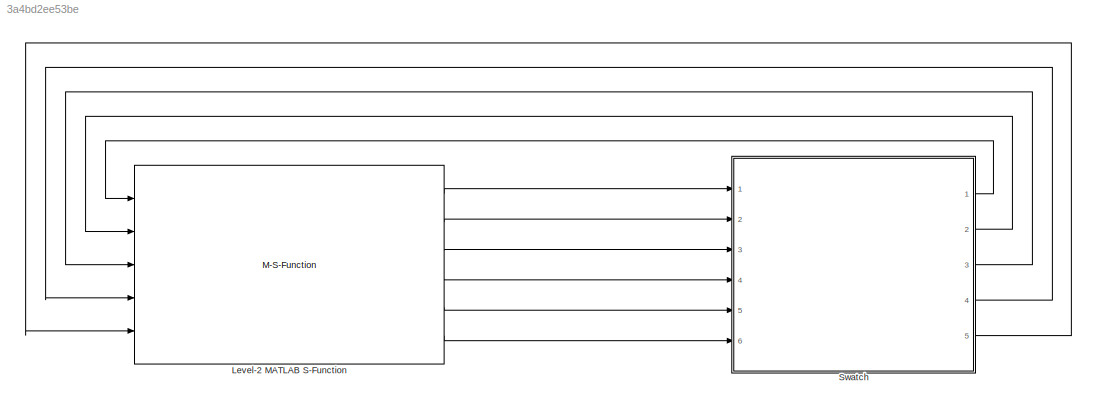
MODEL slx_3a4bd2ee53be
KIND model
CONFIG AbsTol = auto
CONFIG EnableMultiTasking = on
CONFIG FixedStep = 0.1
CONFIG MaxStep = auto
CONFIG MinStep = auto
CONFIG RelTol = 1e-3
CONFIG SampleTimeConstraint = Unconstrained
CONFIG Solver = ode3
CONFIG SolverName = ode3
CONFIG StartTime = 0.0
CONFIG StopTime = inf
BLOCK [M-S-Function] Level-2 MATLAB S-Function
  FunctionName = WI
  Ports = [5, 6]
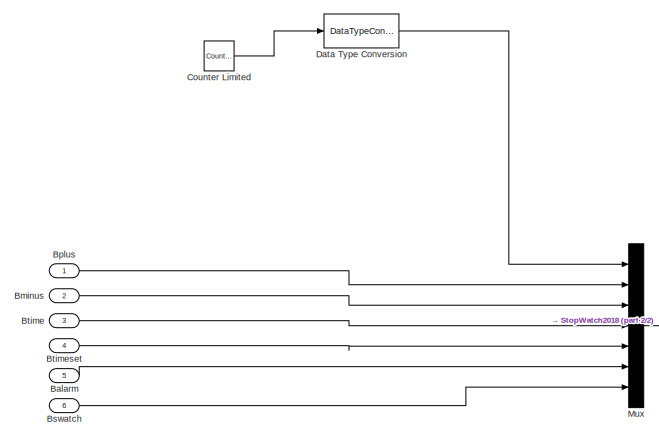
[diagram: Swatch   - part 1/2, left side, full height]
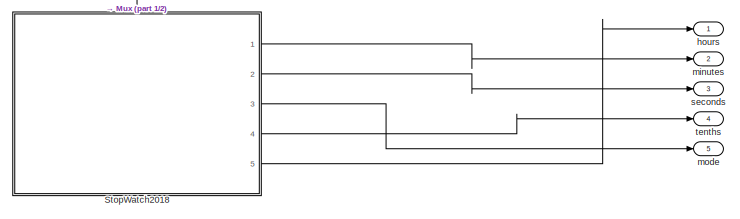
[diagram: Swatch   - part 2/2, bottom right region]
BLOCK [SubSystem] Swatch  
  Ports = [6, 5]
  RequestExecContextInheritance = off
BLOCK [Inport] Swatch  /Balarm
  IconDisplay = Port number
  Port = 5
BLOCK [Inport] Swatch  /Bminus
  IconDisplay = Port number
  Port = 2
BLOCK [Inport] Swatch  /Bplus
  IconDisplay = Port number
BLOCK [Inport] Swatch  /Bswatch
  IconDisplay = Port number
  Port = 6
BLOCK [Inport] Swatch  /Btime
  IconDisplay = Port number
  Port = 3
BLOCK [Inport] Swatch  /Btimeset 
  IconDisplay = Port number
  Port = 4
BLOCK [Reference] Swatch  /Counter Limited  REF=simulink/Sources/Counter
Limited
  Ports = [0, 1]
  SourceBlock = simulink/Sources/Counter\nLimited
  SourceProductBaseCode = SL
  SourceProductName = Simulink
  SourceType = Counter Limited
BLOCK [DataTypeConversion] Swatch  /Data Type Conversion
  OutDataTypeStr = boolean
  RndMeth = Floor
  SaturateOnIntegerOverflow = off
BLOCK [Mux] Swatch  /Mux
  DisplayOption = bar
  Inputs = 7
  Ports = [7, 1]
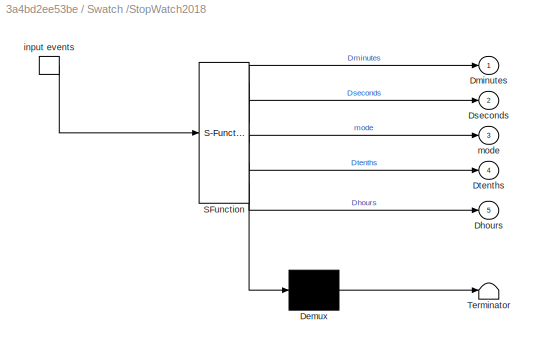
BLOCK [SubSystem] Swatch  /StopWatch2018 
  BlockKeywords = __PRM__SERIALIZED__DATA__:Stateflow Chart,Stateflow Diagram
  ErrorFcn = Stateflow.Translate.translate
  PermitHierarchicalResolution = ExplicitOnly
  Ports = [0, 5, 0, 1]
  RequestExecContextInheritance = off
  SFBlockType = Chart
  TreatAsAtomicUnit = on
BLOCK [Demux] Swatch  /StopWatch2018 / Demux 
  Outputs = 1
  Ports = [1, 1]
BLOCK [S-Function] Swatch  /StopWatch2018 / SFunction 
  EnableBusSupport = on
  FunctionName = sf_sfun
  PortCounts = [1 6]
  Ports = [1, 6]
  SFcnIsStateOwnerBlock = off
  SFunctionDeploymentMode = off
  Tag = Stateflow S-Function Stop_Generated 3
BLOCK [Terminator] Swatch  /StopWatch2018 / Terminator 
BLOCK [Outport] Swatch  /StopWatch2018 /Dhours
  IconDisplay = Port number
  Port = 5
BLOCK [Outport] Swatch  /StopWatch2018 /Dminutes
  IconDisplay = Port number
BLOCK [Outport] Swatch  /StopWatch2018 /Dseconds
  IconDisplay = Port number
  Port = 2
BLOCK [Outport] Swatch  /StopWatch2018 /Dtenths
  IconDisplay = Port number
  Port = 4
BLOCK [TriggerPort] Swatch  /StopWatch2018 /input events
  Ports = [0, 1]
  ShowOutputPort = on
  StatesWhenEnabling = held
  VariantControl = (inherit)
BLOCK [Outport] Swatch  /StopWatch2018 /mode
  IconDisplay = Port number
  Port = 3
BLOCK [Outport] Swatch  /hours
  IconDisplay = Port number
BLOCK [Outport] Swatch  /minutes
  IconDisplay = Port number
  Port = 2
BLOCK [Outport] Swatch  /mode
  IconDisplay = Port number
  Port = 5
BLOCK [Outport] Swatch  /seconds
  IconDisplay = Port number
  Port = 3
BLOCK [Outport] Swatch  /tenths
  IconDisplay = Port number
  Port = 4
LINE Level-2 MATLAB S-Function:1 -> Swatch  :1
LINE Level-2 MATLAB S-Function:2 -> Swatch  :2
LINE Level-2 MATLAB S-Function:3 -> Swatch  :3
LINE Level-2 MATLAB S-Function:4 -> Swatch  :4
LINE Level-2 MATLAB S-Function:5 -> Swatch  :5
LINE Level-2 MATLAB S-Function:6 -> Swatch  :6
LINE Swatch  /Balarm:1 -> Swatch  /Mux:6
LINE Swatch  /Bminus:1 -> Swatch  /Mux:3
LINE Swatch  /Bplus:1 -> Swatch  /Mux:2
LINE Swatch  /Bswatch:1 -> Swatch  /Mux:7
LINE Swatch  /Btime:1 -> Swatch  /Mux:4
LINE Swatch  /Btimeset :1 -> Swatch  /Mux:5
LINE Swatch  /Counter Limited:1 -> Swatch  /Data Type Conversion:1
LINE Swatch  /Data Type Conversion:1 -> Swatch  /Mux:1
LINE Swatch  /Mux:1 -> Swatch  /StopWatch2018 :trigger
LINE Swatch  /StopWatch2018 :1 -> Swatch  /minutes:1
LINE Swatch  /StopWatch2018 :2 -> Swatch  /seconds:1
LINE Swatch  /StopWatch2018 :3 -> Swatch  /mode:1
LINE Swatch  /StopWatch2018 :4 -> Swatch  /tenths:1
LINE Swatch  /StopWatch2018 :5 -> Swatch  /hours:1
LINE Swatch  :1 -> Level-2 MATLAB S-Function:1
LINE Swatch  :2 -> Level-2 MATLAB S-Function:2
LINE Swatch  :3 -> Level-2 MATLAB S-Function:3
LINE Swatch  :4 -> Level-2 MATLAB S-Function:4
LINE Swatch  :5 -> Level-2 MATLAB S-Function:5
CHART Swatch  /StopWatch2018
 states=20 transitions=74
  STATE_LABEL 'AlarmManagement'
  STATE_LABEL 'Checking'
  STATE_LABEL 'Alarm_ON'
  STATE_LABEL '[Ahours == hours && Aminutes == minutes]'
  STATE_LABEL '[Ahours ~= hours || Aminutes ~= minutes]'
  STATE_LABEL 'Checking'
  STATE_LABEL 'Alarm_ON'
  STATE_LABEL 'TimeCount\n'
  STATE_LABEL 'Count\n'
  STATE_LABEL '{Dtenths = uint8(0);\ntenths = uint8(0);}'
  STATE_LABEL '{hours = hours +1}'
  STATE_LABEL '{minutes = minutes +1;}'
  STATE_LABEL '{seconds = seconds + 1;}'
  STATE_LABEL 'Tick'
  STATE_LABEL '[tenths == 9]{tenths = uint8(0);}'
  STATE_LABEL '[seconds == 59]{seconds = uint8(0);}'
  STATE_LABEL '[minutes == 59]{minutes = uint8(0);}'
  STATE_LABEL '[hours == 24]{hours = uint8(0)}'
  STATE_LABEL '{tenths = tenths +1;}'
  STATE_LABEL 'StopW_Start'
  STATE_LABEL 'Count\n'
  STATE_LABEL 'TimeCountStopWatch\n'
  STATE_LABEL 'Stop_Idle'
  STATE_LABEL 'S_Count_Running\n'
  STATE_LABEL 'plusbutton'
  STATE_LABEL '{Sminutes = Sminutes +1;}'
  STATE_LABEL '{Sseconds = Sseconds + 1;}'
  STATE_LABEL '[Sseconds == 59]{Sseconds = uint8(0);}'
  STATE_LABEL '[Stenths == 9]{Stenths = uint8(0);}'
  STATE_LABEL '[Sminutes == 59]{Sminutes = uint8(0);}'
  STATE_LABEL '{Stenths = Stenths +1;}'
  STATE_LABEL 'Tick'
  STATE_LABEL 'StopW_Start'
  STATE_LABEL '{Shours = hours +1}'
  STATE_LABEL '[Shours == 24]{Shours = uint8(0)}'
  STATE_LABEL 'Stop_Idle'
  STATE_LABEL 'S_Count_Running\n'
  STATE_LABEL 'interface\n'
  STATE_LABEL 'TimeDisplay\nen: mode = uint8(0)\ndu: Dhours = hours;\n Dminutes = minutes;\n Dtenths = tenths;\n Dseconds = seconds\n'
  STATE_LABEL 'StopWatch\nen: mode = uint8(3);\n Shours = uint8(0);\n Sminutes = uint8(0);\n Sseconds = uint8(0);\n Stenths = uint8(0);\n Dhours = uint8(0);\n Dminutes =uint8(0);\n Dseconds = uint8(0);\n Dtenths = uint8(0)\n'
